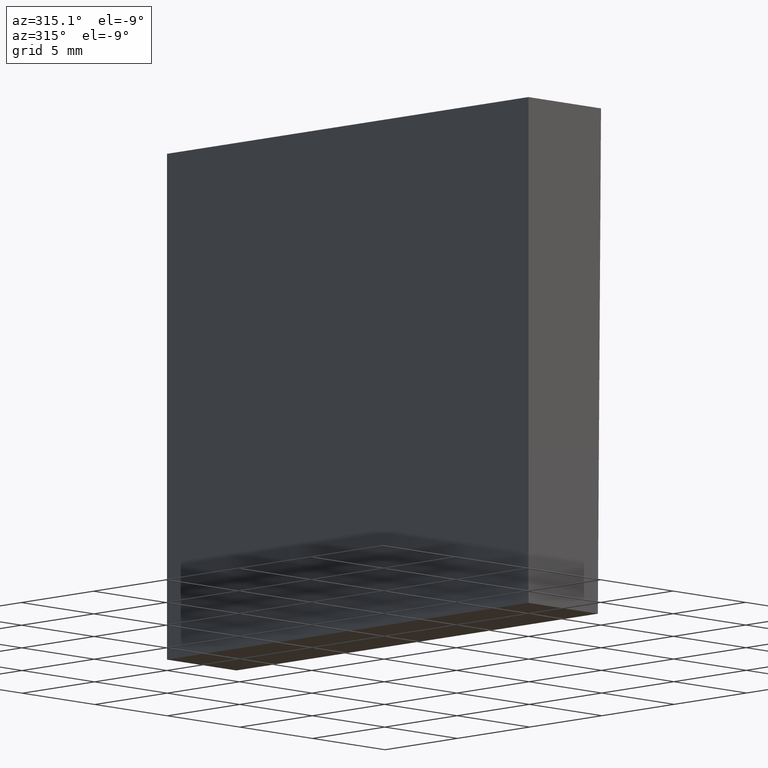
[diagram: clean part render]
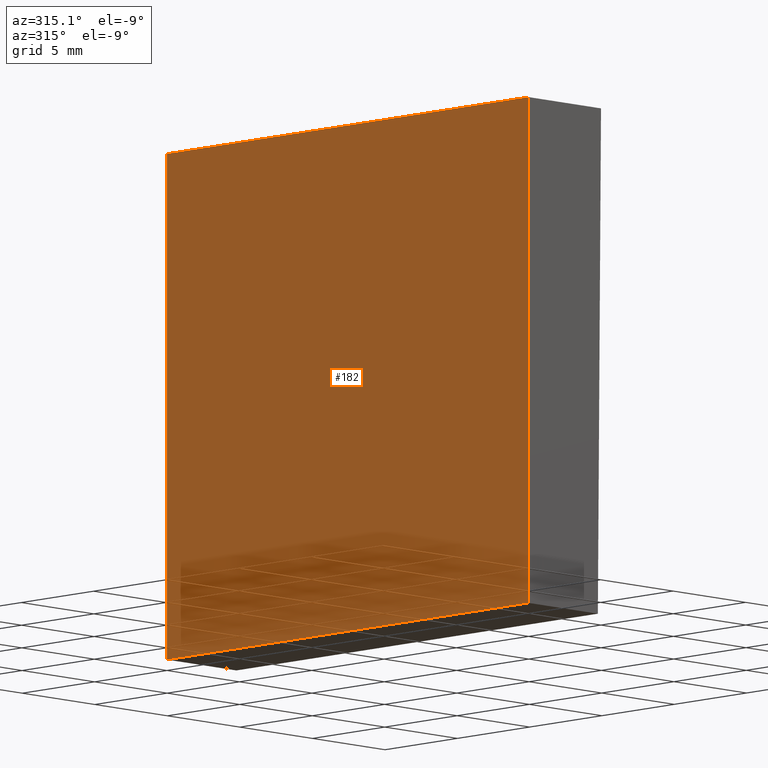
[diagram: same view with one face highlighted and labeled with its STEP entity id]
A machine part, auxiliary view. The second image highlights one B-rep face of the part: STEP entity #182.
In plain terms, the highlighted planar face has unit normal (1, 0, 0).
Its self-contained STEP definition (entity closure, byte-faithful):
#16 = EDGE_CURVE ( 'NONE', #29, #186, #54, .T. ) ;
#20 = PLANE ( 'NONE',  #95 ) ;
#24 = LINE ( 'NONE', #40, #196 ) ;
#28 = VERTEX_POINT ( 'NONE', #201 ) ;
#29 = VERTEX_POINT ( 'NONE', #43 ) ;
#37 = DIRECTION ( 'NONE',  ( 0.0000000000000000000, 0.0000000000000000000, -1.000000000000000000 ) ) ;
#38 = CARTESIAN_POINT ( 'NONE',  ( 1.734723475976807100E-015, 0.0000000000000000000, -12.50000000000000000 ) ) ;
#40 = CARTESIAN_POINT ( 'NONE',  ( 1.734723475976807100E-015, 0.0000000000000000000, -12.50000000000000000 ) ) ;
#43 = CARTESIAN_POINT ( 'NONE',  ( 1.734723475976807100E-015, 25.00000000000000000, -12.50000000000000000 ) ) ;
#54 = LINE ( 'NONE', #150, #138 ) ;
#56 = DIRECTION ( 'NONE',  ( -0.0000000000000000000, -1.000000000000000000, -0.0000000000000000000 ) ) ;
#61 = ORIENTED_EDGE ( 'NONE', *, *, #16, .T. ) ;
#66 = LINE ( 'NONE', #129, #194 ) ;
#81 = FACE_OUTER_BOUND ( 'NONE', #154, .T. ) ;
#83 = ORIENTED_EDGE ( 'NONE', *, *, #185, .F. ) ;
#86 = DIRECTION ( 'NONE',  ( 0.0000000000000000000, 0.0000000000000000000, 1.000000000000000000 ) ) ;
#87 = EDGE_CURVE ( 'NONE', #186, #28, #24, .T. ) ;
#95 = AXIS2_PLACEMENT_3D ( 'NONE', #158, #145, #37 ) ;
#99 = DIRECTION ( 'NONE',  ( 0.0000000000000000000, 0.0000000000000000000, 1.000000000000000000 ) ) ;
#108 = VERTEX_POINT ( 'NONE', #181 ) ;
#109 = LINE ( 'NONE', #114, #115 ) ;
#114 = CARTESIAN_POINT ( 'NONE',  ( 1.734723475976807100E-015, 25.00000000000000000, -12.50000000000000000 ) ) ;
#115 = VECTOR ( 'NONE', #99, 1000.000000000000000 ) ;
#118 = ORIENTED_EDGE ( 'NONE', *, *, #87, .T. ) ;
#129 = CARTESIAN_POINT ( 'NONE',  ( 1.734723475976807100E-015, 25.00000000000000000, 12.50000000000000000 ) ) ;
#137 = EDGE_CURVE ( 'NONE', #29, #108, #109, .T. ) ;
#138 = VECTOR ( 'NONE', #56, 1000.000000000000000 ) ;
#145 = DIRECTION ( 'NONE',  ( 1.000000000000000000, 0.0000000000000000000, 0.0000000000000000000 ) ) ;
#146 = DIRECTION ( 'NONE',  ( -0.0000000000000000000, -1.000000000000000000, -0.0000000000000000000 ) ) ;
#150 = CARTESIAN_POINT ( 'NONE',  ( 1.734723475976807100E-015, 25.00000000000000000, -12.50000000000000000 ) ) ;
#154 = EDGE_LOOP ( 'NONE', ( #118, #83, #171, #61 ) ) ;
#158 = CARTESIAN_POINT ( 'NONE',  ( 1.734723475976807100E-015, 25.00000000000000000, -12.50000000000000000 ) ) ;
#171 = ORIENTED_EDGE ( 'NONE', *, *, #137, .F. ) ;
#181 = CARTESIAN_POINT ( 'NONE',  ( 1.734723475976807100E-015, 25.00000000000000000, 12.50000000000000000 ) ) ;
#182 = ADVANCED_FACE ( 'NONE', ( #81 ), #20, .F. ) ;
#185 = EDGE_CURVE ( 'NONE', #108, #28, #66, .T. ) ;
#186 = VERTEX_POINT ( 'NONE', #38 ) ;
#194 = VECTOR ( 'NONE', #146, 1000.000000000000000 ) ;
#196 = VECTOR ( 'NONE', #86, 1000.000000000000000 ) ;
#201 = CARTESIAN_POINT ( 'NONE',  ( 1.734723475976807100E-015, 0.0000000000000000000, 12.50000000000000000 ) ) ;